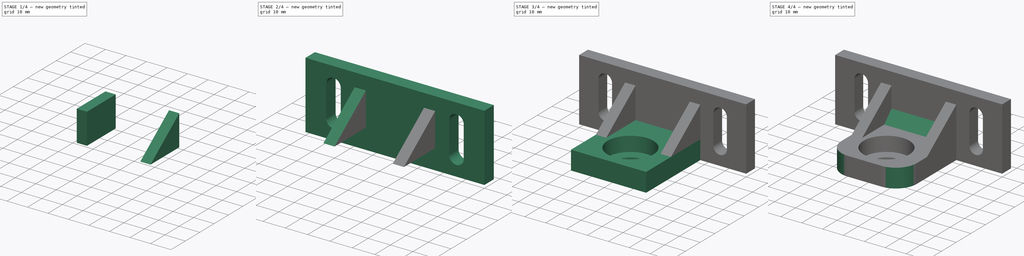
[diagram: build sequence overview — one tinted view per stage of 4, left to right]
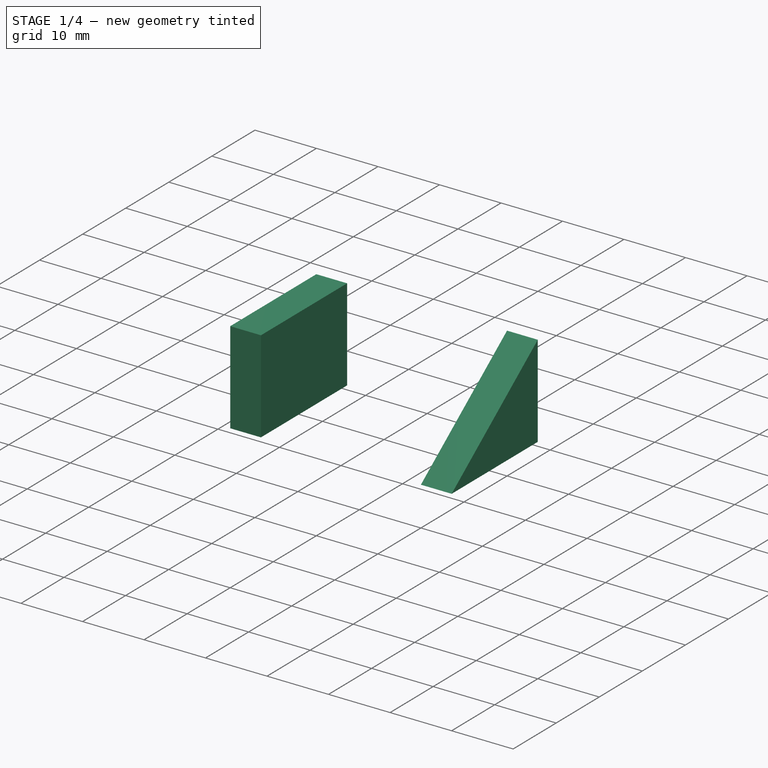
[diagram: stage 1 of 4 — iso view after this stage's code; geometry added in this stage tinted green]
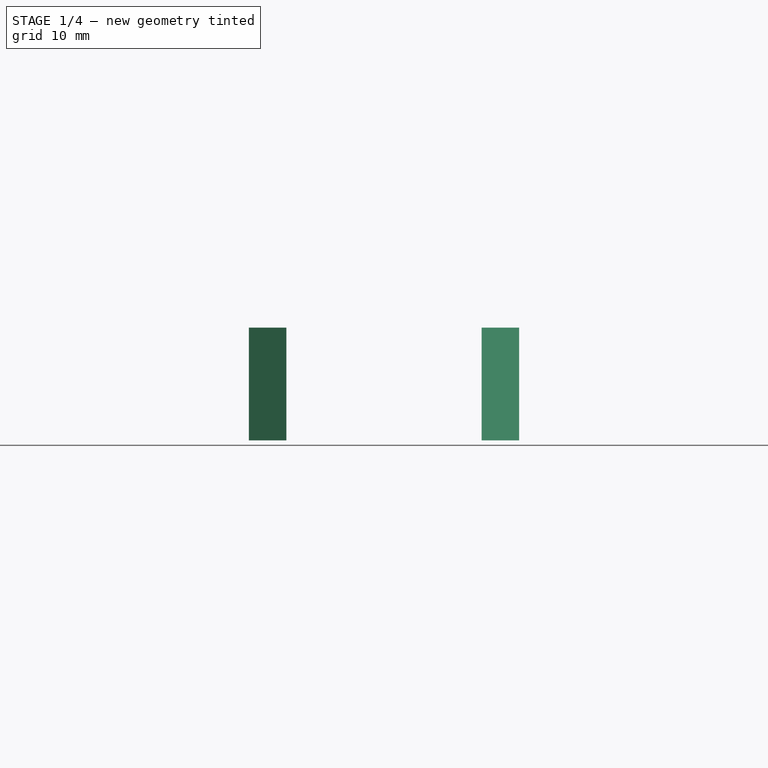
[diagram: stage 1 of 4 — front view after this stage's code; geometry added in this stage tinted green]
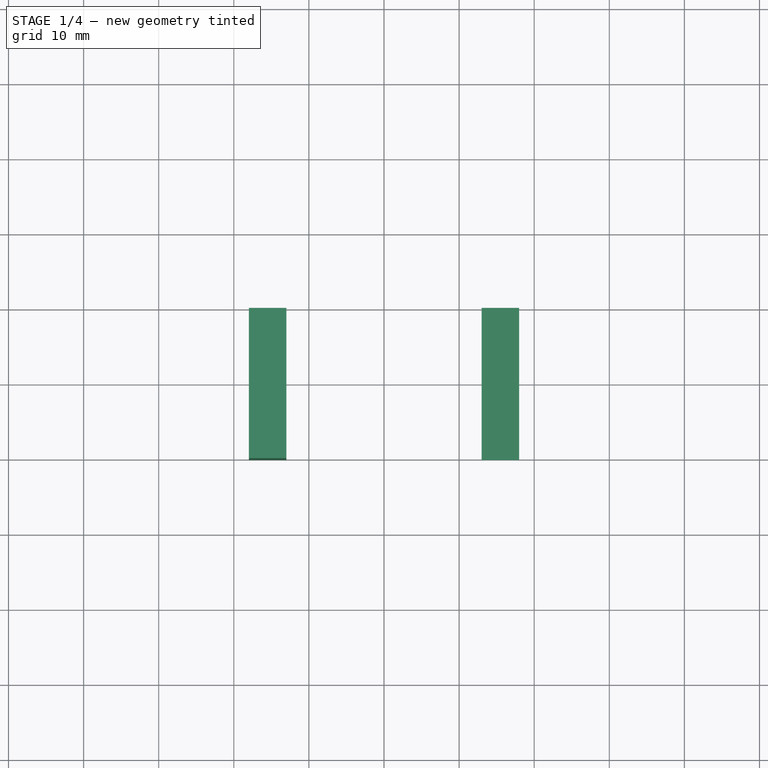
[diagram: stage 1 of 4 — top view after this stage's code; geometry added in this stage tinted green]
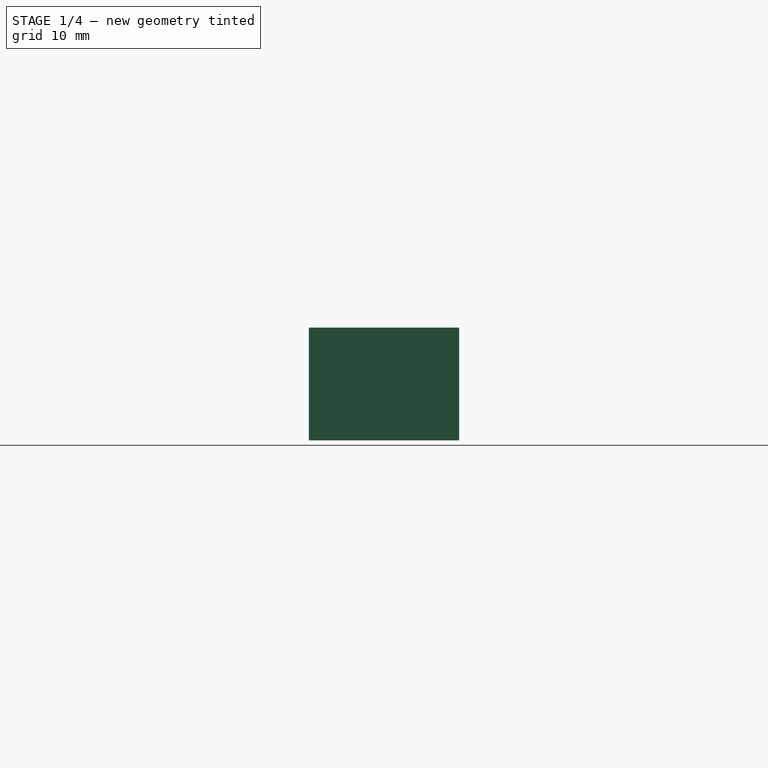
[diagram: stage 1 of 4 — right view after this stage's code; geometry added in this stage tinted green]
FCSTD DOCUMENT  (FreeCAD 0.15R4671 (Git))
Label: top_bearing_mount_lr
License: CC-BY 3.0
LicenseURL: http://creativecommons.org/licenses/by/3.0/
objects: Sketcher::SketchObject×5, PartDesign::Pocket×5, Part::Box×4, PartDesign::Fillet×2, Part::MultiFuse×1, PartDesign::Chamfer×1
note: 23 computed .brp shape members not serialized (recipe doc carries the construction recipe); baked Part::Feature solids carry a one-line shape summary decoded from their .brp

FEATURE [Part::Box] Box002  label="support_tri_back"
  Height = 15
  Length = 5
  Placement = pos=(22,-20,9) rot=(0,0,1;0rad)
  Width = 20
FEATURE [Part::Box] Box003  label="Cube001"
  Height = 15
  Length = 5
  Placement = pos=(53,-20,9) rot=(0,0,1;0rad)
  Width = 20
FEATURE [Sketcher::SketchObject] Sketch005  label="tri_support_1"
  Placement = pos=(58,-20,9) rot=(0.57735,0.57735,0.57735;2.0944rad)
  Support = -> Box003 [Face2]
  sketch-geometry (3):
    g0: LineSegment StartX=0 StartY=0 StartZ=0 EndX=20 EndY=15 EndZ=0
    g1: LineSegment StartX=20 StartY=15 StartZ=0 EndX=0 EndY=15 EndZ=0
    g2: LineSegment StartX=0 StartY=15 StartZ=0 EndX=0 EndY=0 EndZ=0
  constraints (8):
    c: Coincident(g-1,g0)
    c: Coincident(g0,g1)
    c: PointOnObject(g1,g-2)
    c: Coincident(g1,g2)
    c: Coincident(g2,g0)
    c: DistanceY(g-1,g0) = 15
    c: DistanceX(g-1,g0) = 20
    c: DistanceY(g-1,g1) = 15
FEATURE [PartDesign::Pocket] Pocket004
  Length = 5
  Placement = pos=(53,-20,9) rot=(0,0,1;0rad)
  Sketch = -> Sketch005
  Type = 1
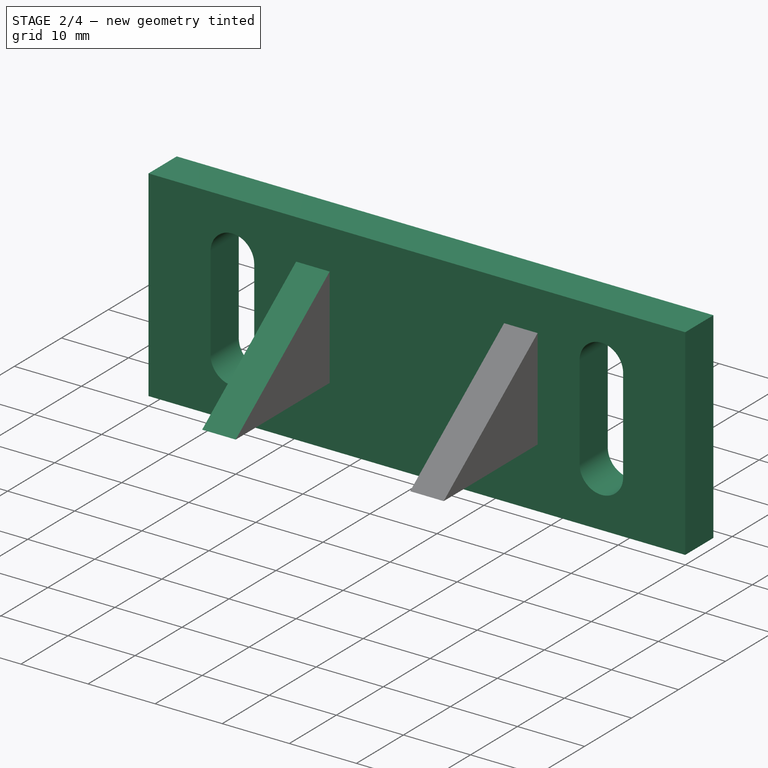
[diagram: stage 2 of 4 — iso view after this stage's code; geometry added in this stage tinted green]
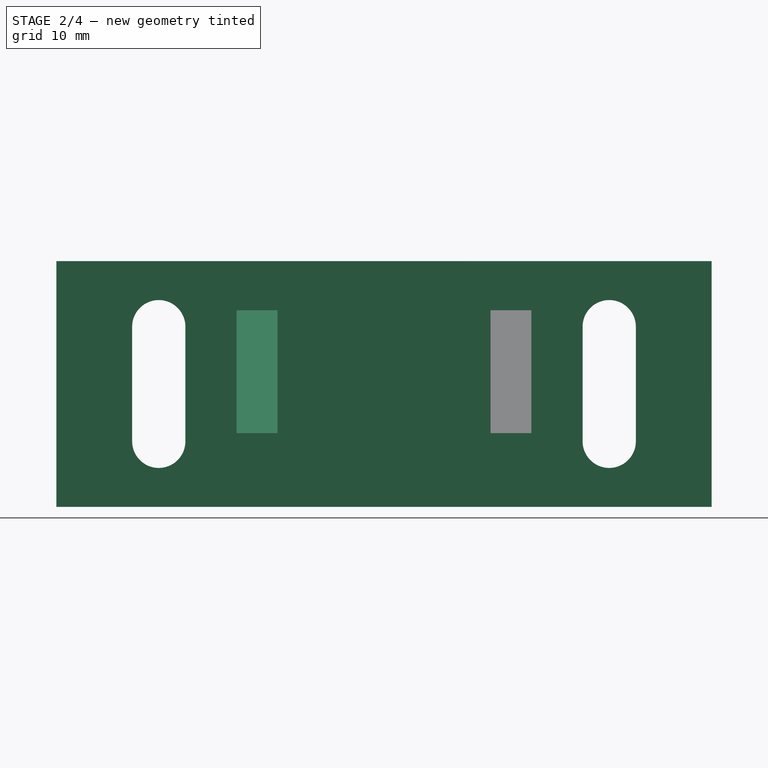
[diagram: stage 2 of 4 — front view after this stage's code; geometry added in this stage tinted green]
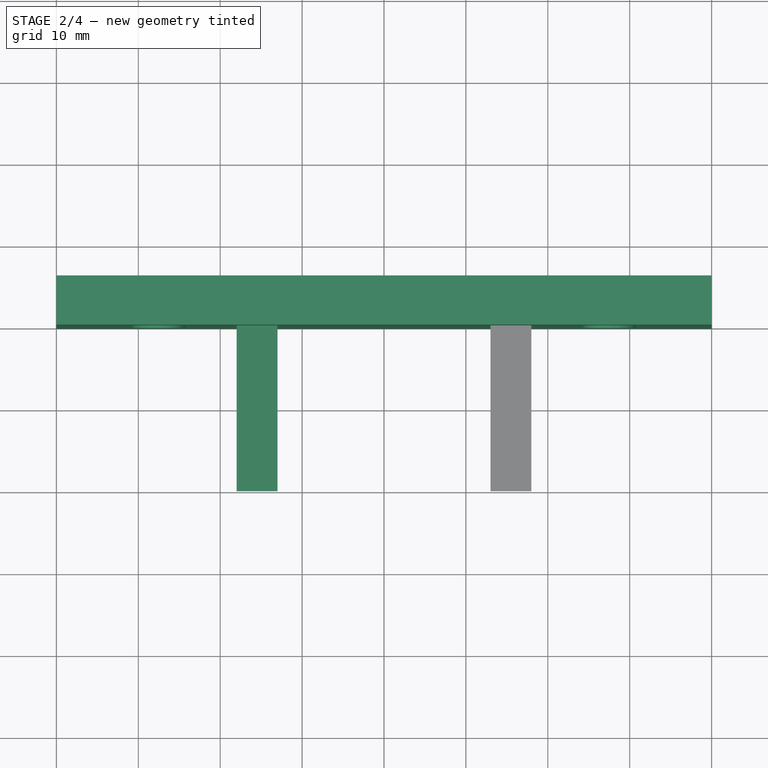
[diagram: stage 2 of 4 — top view after this stage's code; geometry added in this stage tinted green]
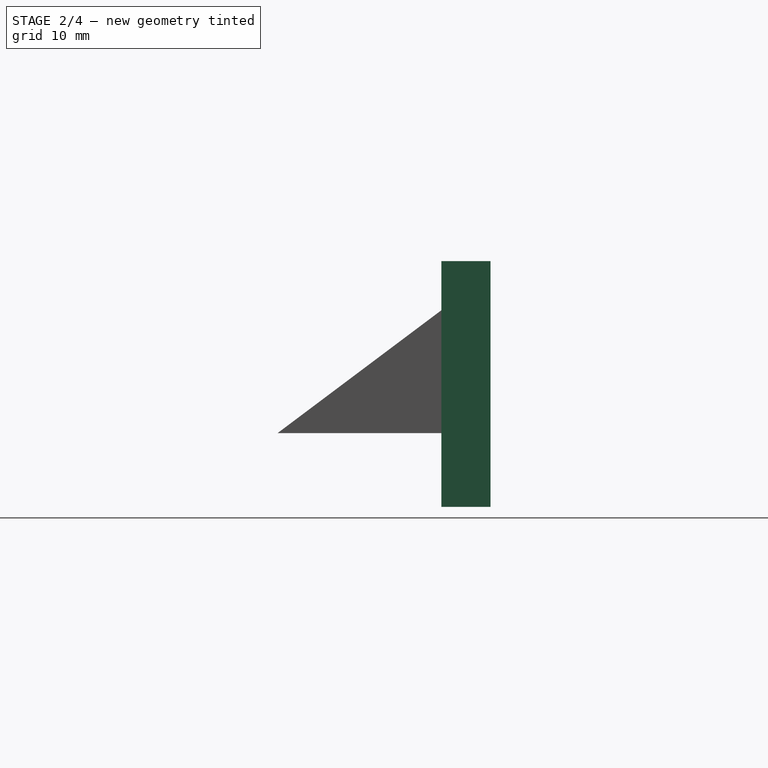
[diagram: stage 2 of 4 — right view after this stage's code; geometry added in this stage tinted green]
FEATURE [Part::Box] Box  label="base_plate"
  Height = 30
  Length = 80
  Width = 6
FEATURE [Sketcher::SketchObject] Sketch003  label="bolt_holes"
  Placement = pos=(0,0,0) rot=(1,0,0;1.5708rad)
  Support = -> Box [Face3]
  sketch-geometry (8):
    g0: ArcOfCircle CenterX=12.5 CenterY=22 CenterZ=0 NormalX=0 NormalY=0 NormalZ=1 Radius=3.25 StartAngle=0 EndAngle=3.14159
    g1: ArcOfCircle CenterX=12.5 CenterY=8 CenterZ=0 NormalX=0 NormalY=0 NormalZ=1 Radius=3.25 StartAngle=3.14159 EndAngle=6.28319
    g2: LineSegment StartX=9.25 StartY=22 StartZ=0 EndX=9.25 EndY=8 EndZ=0
    g3: LineSegment StartX=15.75 StartY=22 StartZ=0 EndX=15.75 EndY=8 EndZ=0
    g4: ArcOfCircle CenterX=67.5 CenterY=22 CenterZ=0 NormalX=0 NormalY=0 NormalZ=1 Radius=3.25 StartAngle=0 EndAngle=3.14159
    g5: ArcOfCircle CenterX=67.5 CenterY=8 CenterZ=0 NormalX=0 NormalY=0 NormalZ=1 Radius=3.25 StartAngle=3.14159 EndAngle=6.28319
    g6: LineSegment StartX=64.25 StartY=22 StartZ=0 EndX=64.25 EndY=8 EndZ=0
    g7: LineSegment StartX=70.75 StartY=22 StartZ=0 EndX=70.75 EndY=8 EndZ=0
  constraints (20):
    c: Tangent(g0,g3) = 1.5708
    c: Tangent(g0,g2) = -1.5708
    c: Tangent(g2,g1) = -1.5708
    c: Tangent(g3,g1) = 1.5708
    c: Vertical(g2)
    c: Equal(g0,g1)
    c: DistanceX(g-1,g0) = 12.5
    c: DistanceX(g0,g0) = -3.25
    c: DistanceY(g-1,g1) = 8
    c: DistanceY(g-1,g0) = 22
    c: Tangent(g4,g7) = 1.5708
    c: Tangent(g4,g6) = -1.5708
    c: Tangent(g6,g5) = -1.5708
    c: Tangent(g7,g5) = 1.5708
    c: Vertical(g6)
    c: Equal(g4,g5)
    c: DistanceX(g-1,g4) = 67.5
    c: DistanceX(g4,g4) = -3.25
    c: DistanceY(g-1,g5) = 8
    c: DistanceY(g-1,g4) = 22
FEATURE [PartDesign::Pocket] Pocket002
  Length = 5
  Sketch = -> Sketch003
  Type = 1
FEATURE [Sketcher::SketchObject] Sketch004  label="tri_support_2"
  Placement = pos=(27,-20,9) rot=(0.57735,0.57735,0.57735;2.0944rad)
  Support = -> Box002 [Face2]
  sketch-geometry (3):
    g0: LineSegment StartX=20 StartY=15 StartZ=0 EndX=0 EndY=0 EndZ=0
    g1: LineSegment StartX=0 StartY=0 StartZ=0 EndX=0 EndY=15 EndZ=0
    g2: LineSegment StartX=0 StartY=15 StartZ=0 EndX=20 EndY=15 EndZ=0
  constraints (8):
    c: Coincident(g0,g-1)
    c: Coincident(g0,g1)
    c: PointOnObject(g1,g-2)
    c: Coincident(g1,g2)
    c: Coincident(g2,g0)
    c: Horizontal(g2)
    c: DistanceY(g-1,g1) = 15
    c: DistanceX(g0,g1) = -20
FEATURE [PartDesign::Pocket] Pocket003
  Length = 5
  Placement = pos=(22,-20,9) rot=(0,0,1;0rad)
  Sketch = -> Sketch004
  Type = 1
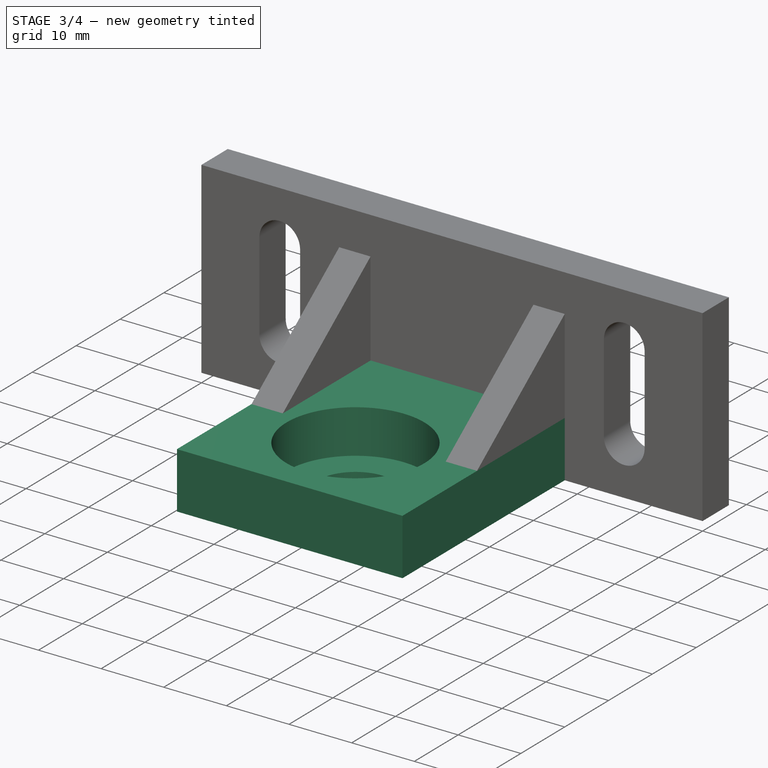
[diagram: stage 3 of 4 — iso view after this stage's code; geometry added in this stage tinted green]
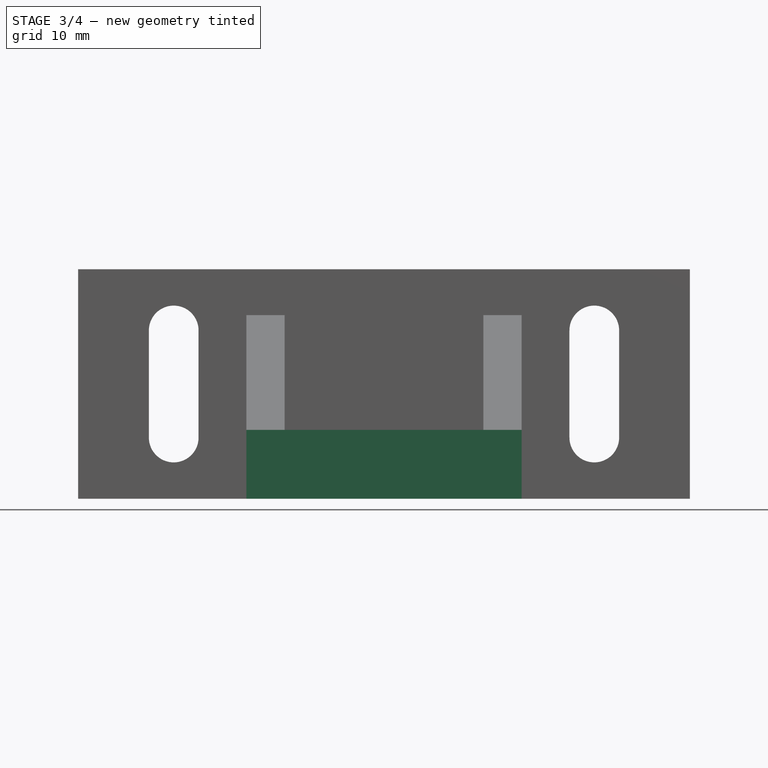
[diagram: stage 3 of 4 — front view after this stage's code; geometry added in this stage tinted green]
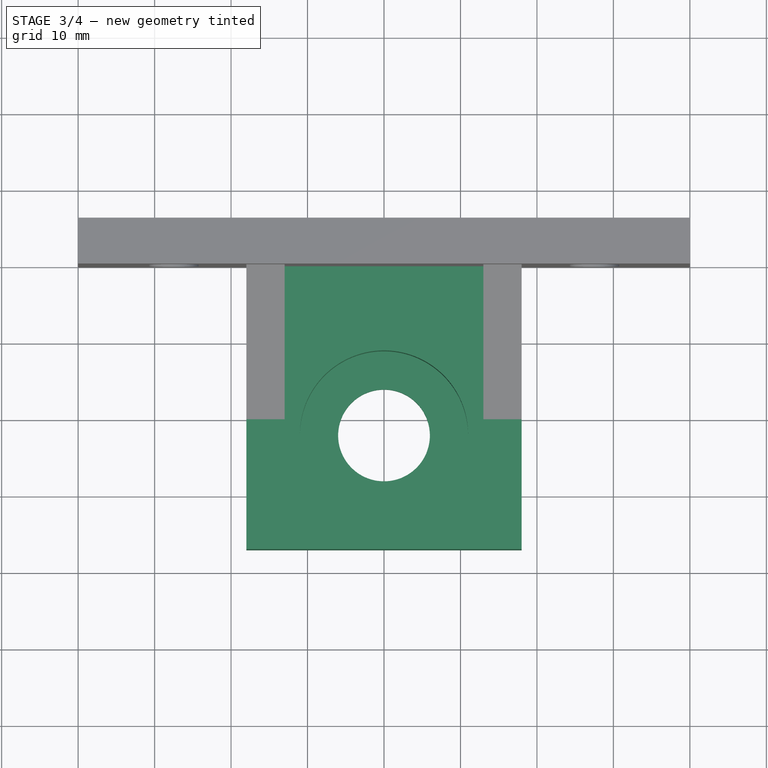
[diagram: stage 3 of 4 — top view after this stage's code; geometry added in this stage tinted green]
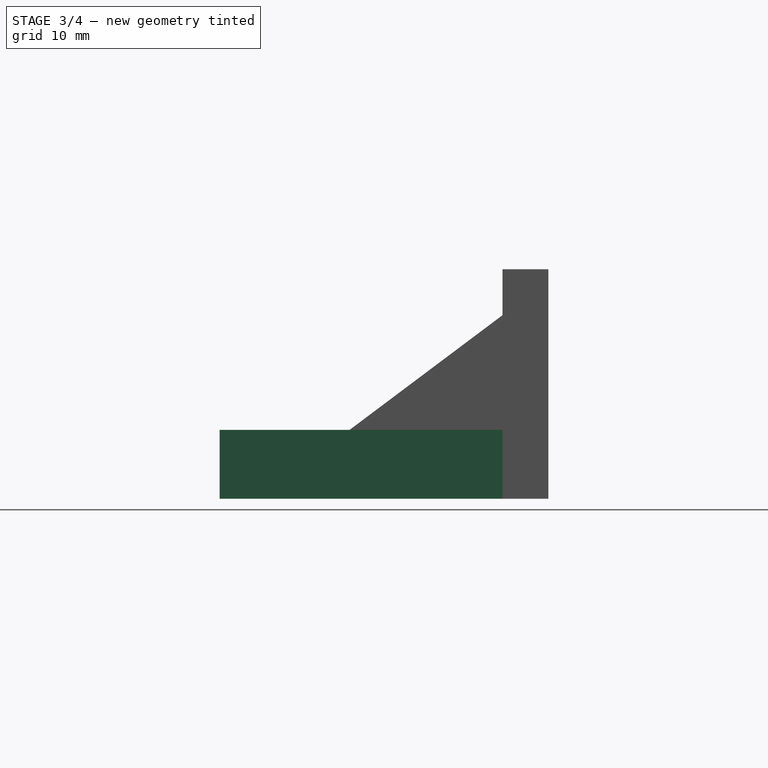
[diagram: stage 3 of 4 — right view after this stage's code; geometry added in this stage tinted green]
FEATURE [Part::Box] Box001  label="bearing_plate"
  Height = 9
  Length = 36
  Placement = pos=(22,-37,0) rot=(0,0,1;0rad)
  Width = 37
FEATURE [Sketcher::SketchObject] Sketch  label="bearing_hole"
  Placement = pos=(22,-37,9) rot=(0,0,1;0rad)
  Support = -> Box001 [Face6]
  sketch-geometry (1):
    g0: Circle CenterX=18 CenterY=15 CenterZ=0 NormalX=0 NormalY=0 NormalZ=1 Radius=11
  constraints (3):
    c: Radius(g0) = 11
    c: DistanceX(g-1,g0) = 18
    c: DistanceY(g-1,g0) = 15
FEATURE [PartDesign::Pocket] Pocket
  Length = 7
  Placement = pos=(22,-37,0) rot=(0,0,1;0rad)
  Sketch = -> Sketch
  Type = 0
FEATURE [Sketcher::SketchObject] Sketch001  label="thru_hole"
  Placement = pos=(22,-37,2) rot=(0,0,1;0rad)
  Support = -> Pocket [Face8]
  sketch-geometry (1):
    g0: Circle CenterX=18 CenterY=15 CenterZ=0 NormalX=0 NormalY=0 NormalZ=1 Radius=6
  constraints (3):
    c: Radius(g0) = 6
    c: DistanceX(g-1,g0) = 18
    c: DistanceY(g-1,g0) = 15
FEATURE [PartDesign::Pocket] Pocket001
  Length = 5
  Placement = pos=(22,-37,0) rot=(0,0,1;0rad)
  Sketch = -> Sketch001
  Type = 1
FEATURE [Part::MultiFuse] Fusion
  Shapes = -> [Pocket001,Pocket004,Pocket003,Pocket002]
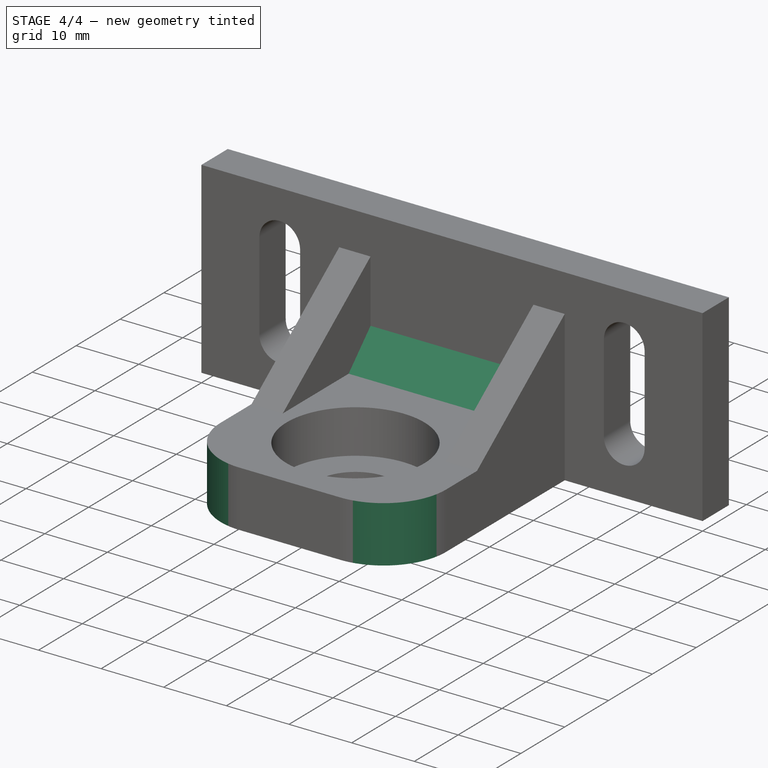
[diagram: stage 4 of 4 — iso view after this stage's code; geometry added in this stage tinted green]
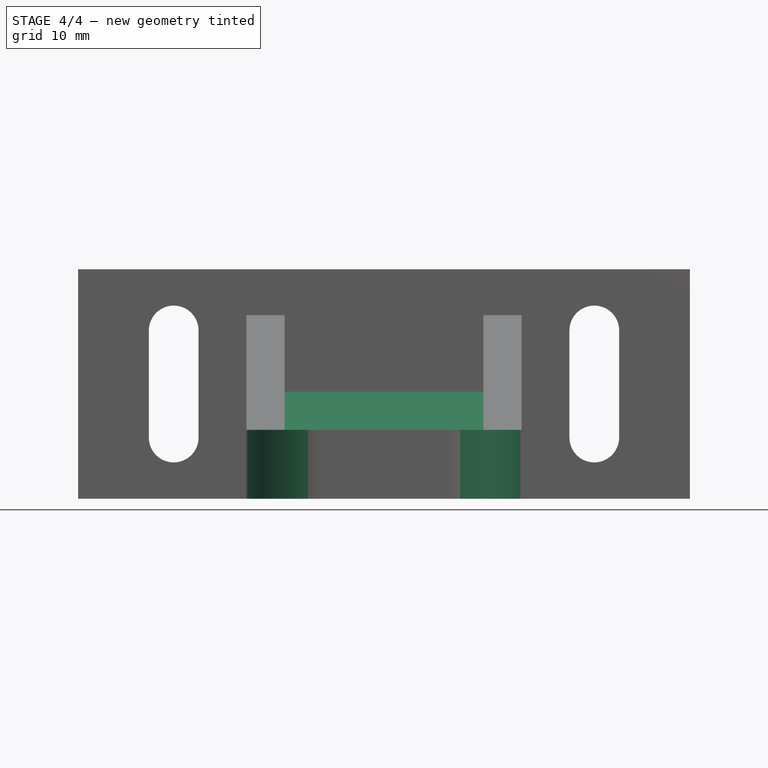
[diagram: stage 4 of 4 — front view after this stage's code; geometry added in this stage tinted green]
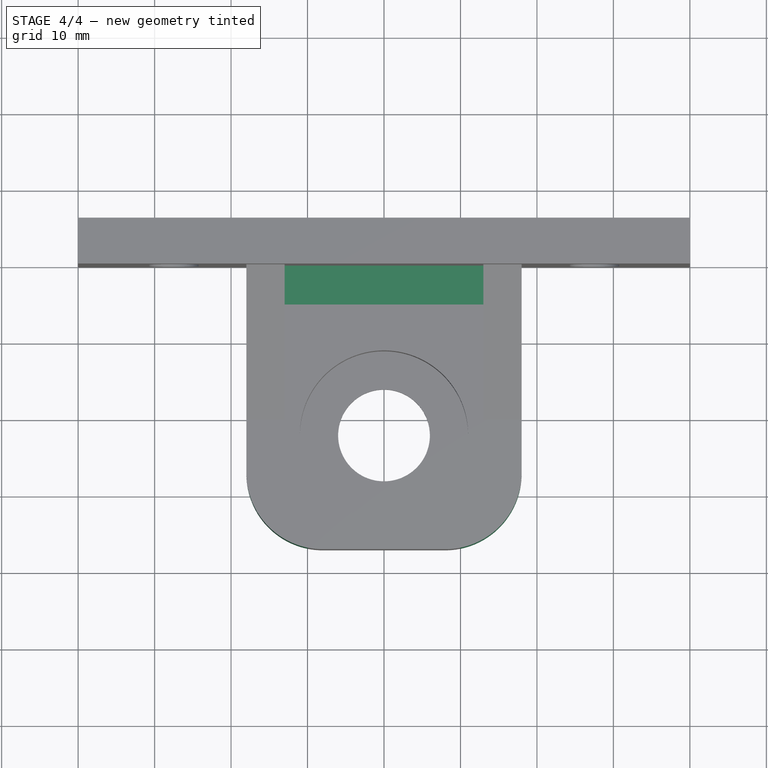
[diagram: stage 4 of 4 — top view after this stage's code; geometry added in this stage tinted green]
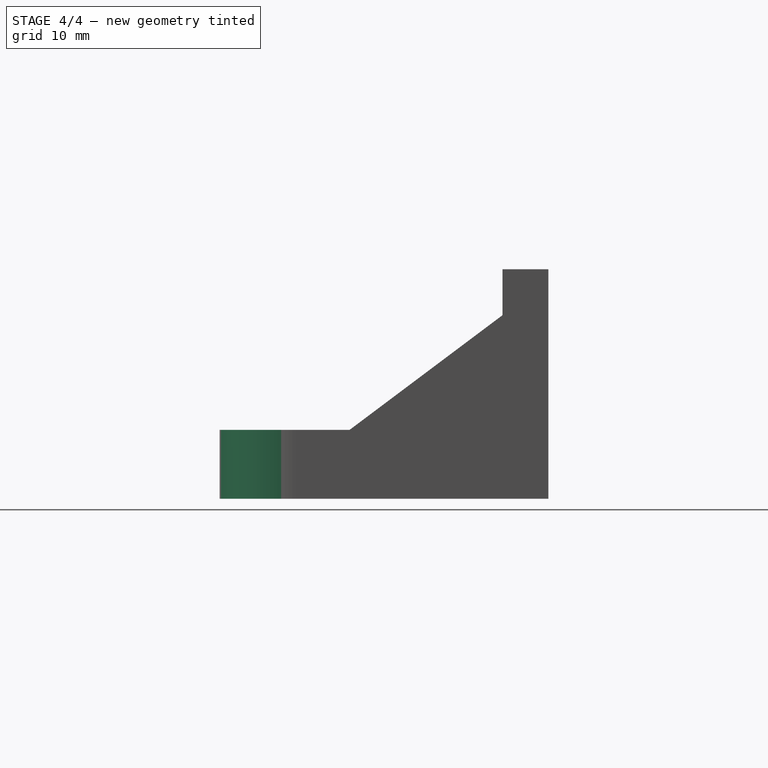
[diagram: stage 4 of 4 — right view after this stage's code; geometry added in this stage tinted green]
FEATURE [PartDesign::Chamfer] Chamfer
  Base = -> Fusion [Edge10]
  Size = 5
FEATURE [PartDesign::Fillet] Fillet
  Base = -> Chamfer [Edge43]
  Radius = 10
FEATURE [PartDesign::Fillet] Fillet001
  Base = -> Fillet [Edge43]
  Radius = 10
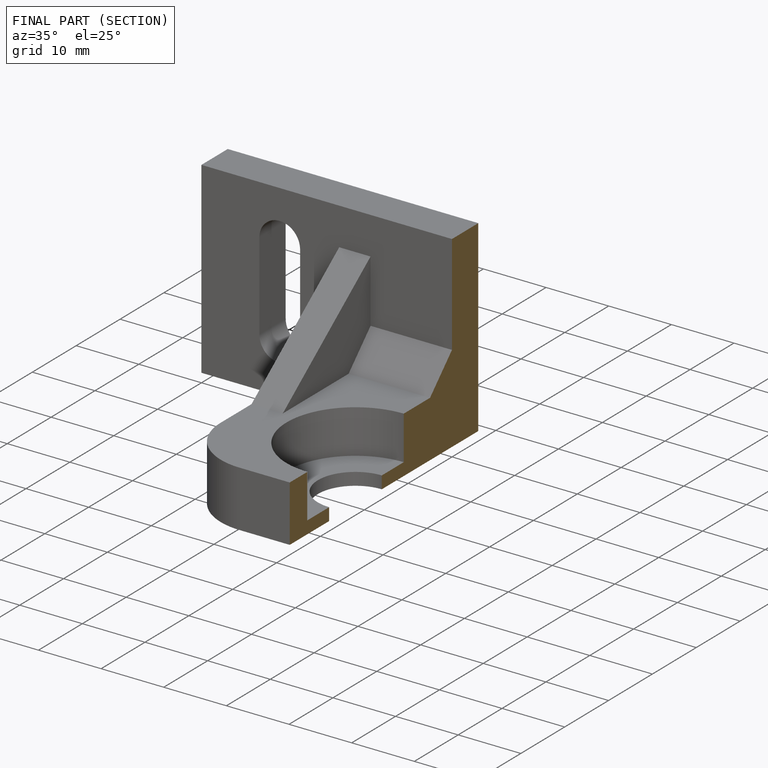
[diagram: finished part — half-section view (interior)]
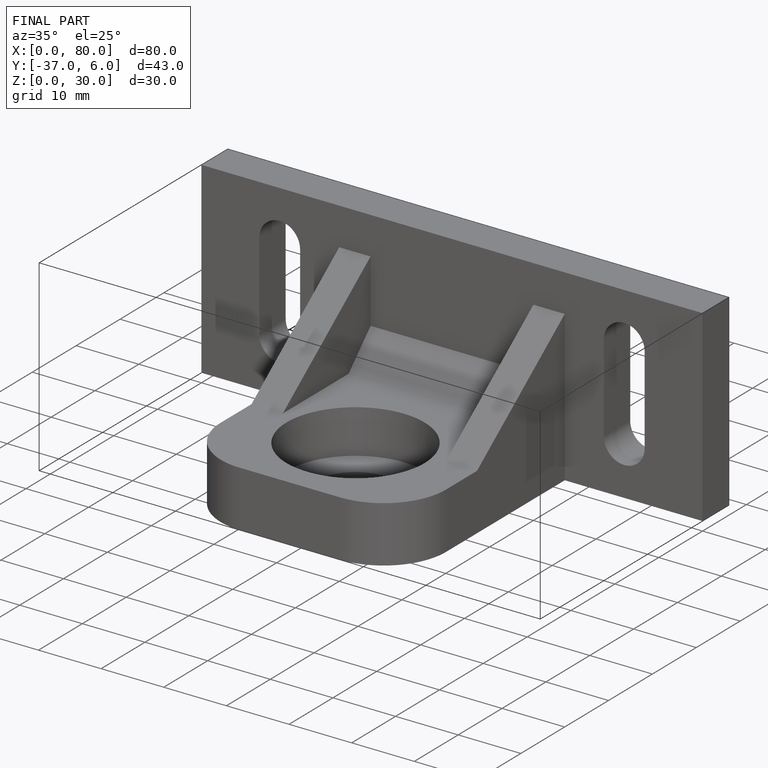
[diagram: finished part — iso view with bounding-box wireframe]
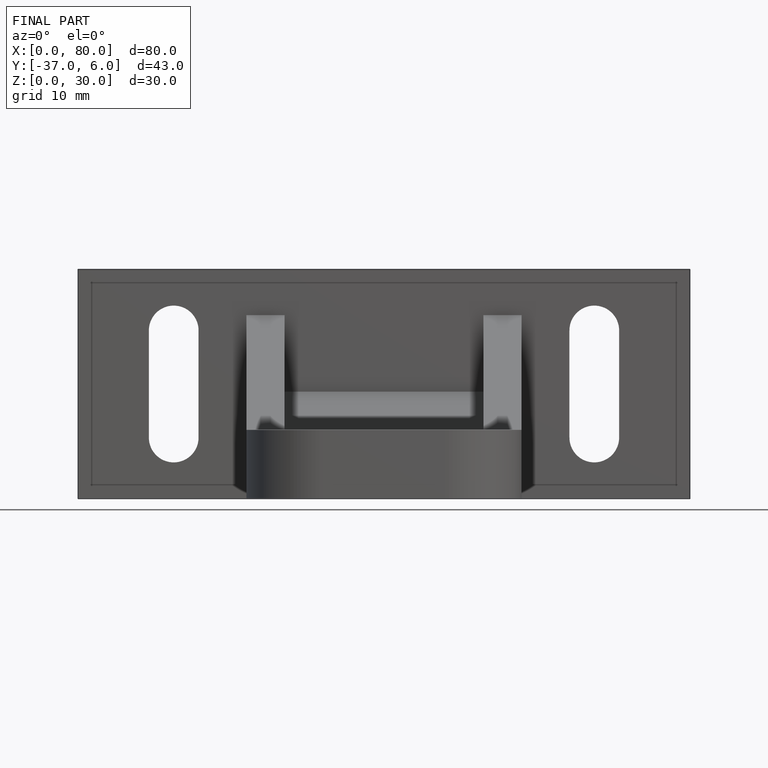
[diagram: finished part — front view with bounding-box wireframe]
